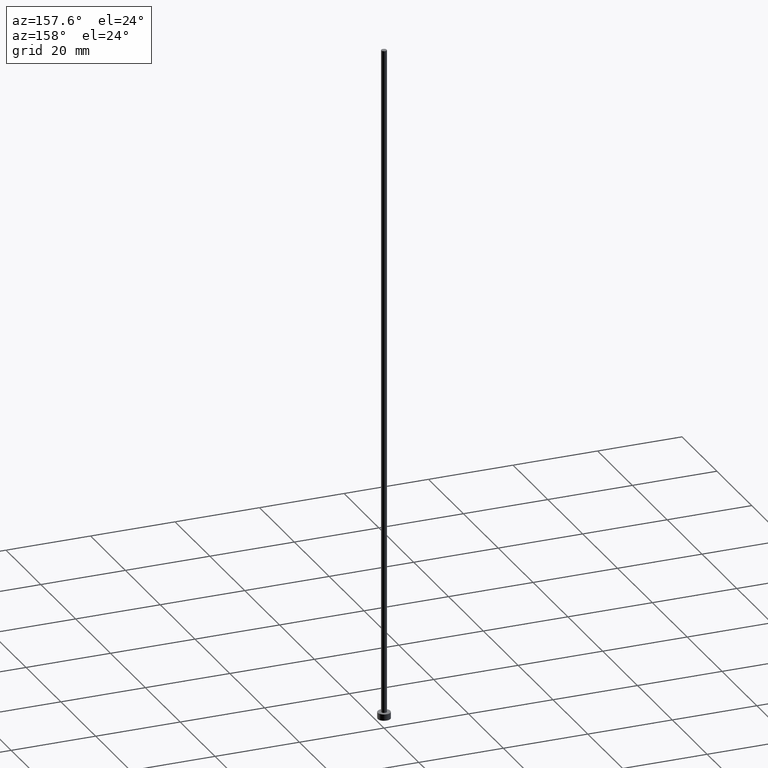
[diagram: clean part render]
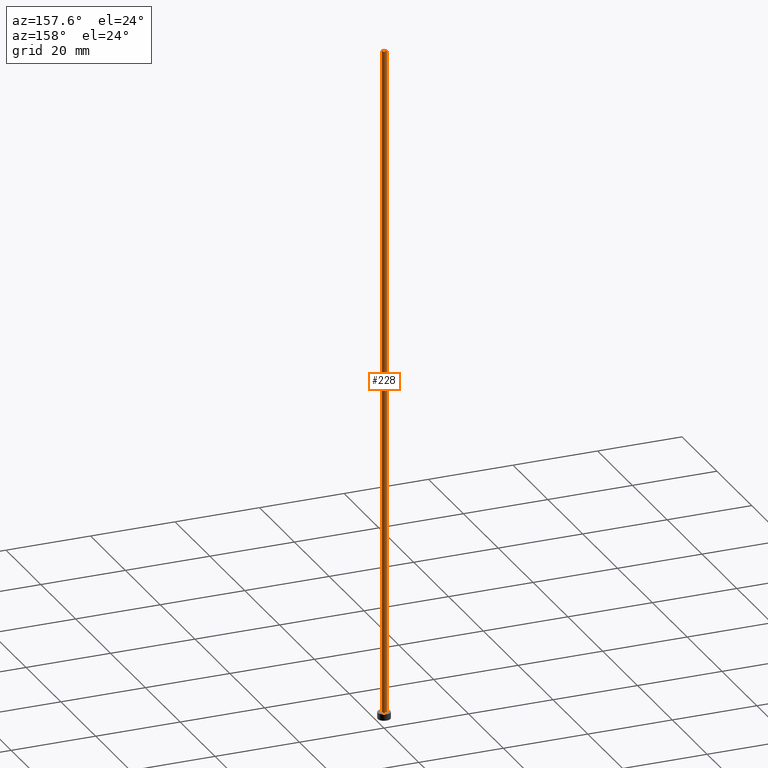
[diagram: same view with one face highlighted and labeled with its STEP entity id]
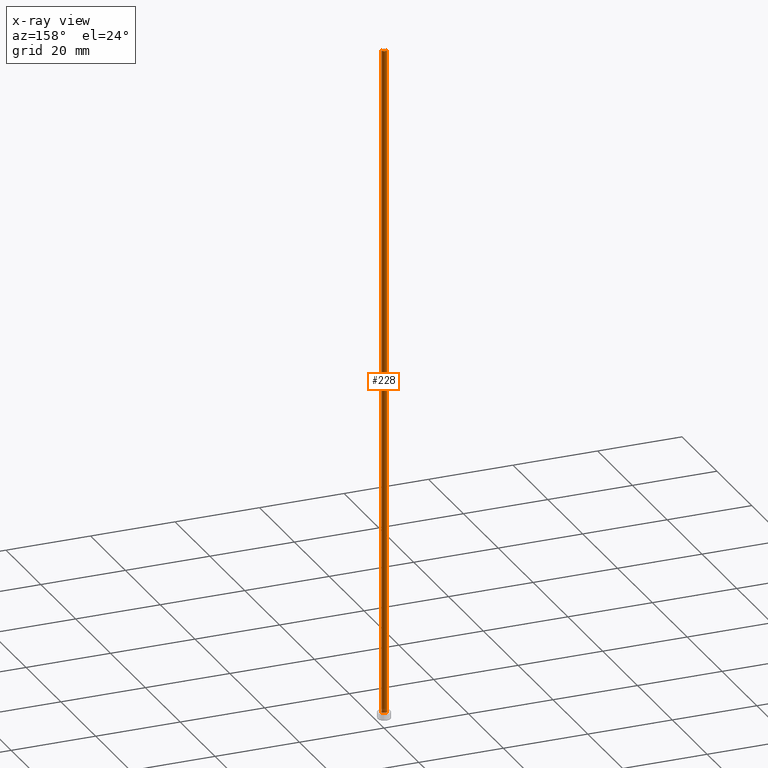
[diagram: x-ray of the same camera — body ghosted, the highlighted face saturated]
A machine part, auxiliary view. The second image highlights one B-rep face of the part: STEP entity #228.
The next image is the same camera in x-ray: the body ghosted, the highlighted face saturated — about 0% of this face is hidden behind the body in this view.
In plain terms, the highlighted cylindrical surface (edge-blend (fillet) strip) has radius 0.65 mm, axis along (-0, -0, -1).
Its self-contained STEP definition (entity closure, byte-faithful):
#10 = DIRECTION ( 'NONE',  ( 0.000000000000000000, 0.000000000000000000, 1.000000000000000000 ) ) ;
#11 = CIRCLE ( 'NONE', #86, 0.6500000000000000222 ) ;
#15 = VECTOR ( 'NONE', #235, 1000.000000000000000 ) ;
#16 = CARTESIAN_POINT ( 'NONE',  ( 0.000000000000000000, 0.000000000000000000, 1.500000000000000000 ) ) ;
#17 = EDGE_CURVE ( 'NONE', #93, #122, #194, .T. ) ;
#18 = DIRECTION ( 'NONE',  ( 1.000000000000000000, 0.000000000000000000, 0.000000000000000000 ) ) ;
#20 = DIRECTION ( 'NONE',  ( -0.000000000000000000, -0.000000000000000000, -1.000000000000000000 ) ) ;
#21 = CARTESIAN_POINT ( 'NONE',  ( 0.000000000000000000, 0.000000000000000000, 160.0000000000000000 ) ) ;
#45 = DIRECTION ( 'NONE',  ( 1.000000000000000000, 0.000000000000000000, 0.000000000000000000 ) ) ;
#48 = VERTEX_POINT ( 'NONE', #208 ) ;
#77 = ORIENTED_EDGE ( 'NONE', *, *, #17, .F. ) ;
#86 = AXIS2_PLACEMENT_3D ( 'NONE', #16, #192, #18 ) ;
#90 = CARTESIAN_POINT ( 'NONE',  ( -0.6500000000000000222, 0.000000000000000000, 160.0000000000000000 ) ) ;
#93 = VERTEX_POINT ( 'NONE', #109 ) ;
#102 = ORIENTED_EDGE ( 'NONE', *, *, #171, .F. ) ;
#104 = EDGE_CURVE ( 'NONE', #93, #48, #254, .T. ) ;
#109 = CARTESIAN_POINT ( 'NONE',  ( 0.6500000000000000222, 7.960204194457795477E-17, 160.0000000000000000 ) ) ;
#112 = LINE ( 'NONE', #138, #239 ) ;
#113 = CARTESIAN_POINT ( 'NONE',  ( -0.6500000000000000222, 0.000000000000000000, 1.500000000000000000 ) ) ;
#114 = DIRECTION ( 'NONE',  ( -0.000000000000000000, -0.000000000000000000, -1.000000000000000000 ) ) ;
#116 = FACE_OUTER_BOUND ( 'NONE', #202, .T. ) ;
#120 = DIRECTION ( 'NONE',  ( -1.000000000000000000, 0.000000000000000000, 0.000000000000000000 ) ) ;
#122 = VERTEX_POINT ( 'NONE', #90 ) ;
#125 = CARTESIAN_POINT ( 'NONE',  ( 0.000000000000000000, 0.000000000000000000, 160.0000000000000000 ) ) ;
#138 = CARTESIAN_POINT ( 'NONE',  ( -0.6500000000000000222, 0.000000000000000000, 160.0000000000000000 ) ) ;
#141 = VERTEX_POINT ( 'NONE', #113 ) ;
#154 = CARTESIAN_POINT ( 'NONE',  ( 0.6500000000000000222, 7.960204194457795477E-17, 160.0000000000000000 ) ) ;
#171 = EDGE_CURVE ( 'NONE', #122, #141, #112, .T. ) ;
#175 = ORIENTED_EDGE ( 'NONE', *, *, #177, .T. ) ;
#177 = EDGE_CURVE ( 'NONE', #48, #141, #11, .T. ) ;
#192 = DIRECTION ( 'NONE',  ( 0.000000000000000000, 0.000000000000000000, 1.000000000000000000 ) ) ;
#193 = CYLINDRICAL_SURFACE ( 'NONE', #198, 0.6500000000000000222 ) ;
#194 = CIRCLE ( 'NONE', #220, 0.6500000000000000222 ) ;
#195 = ORIENTED_EDGE ( 'NONE', *, *, #104, .T. ) ;
#198 = AXIS2_PLACEMENT_3D ( 'NONE', #21, #20, #120 ) ;
#202 = EDGE_LOOP ( 'NONE', ( #77, #195, #175, #102 ) ) ;
#208 = CARTESIAN_POINT ( 'NONE',  ( 0.6500000000000000222, 7.960204194457795477E-17, 1.500000000000000000 ) ) ;
#220 = AXIS2_PLACEMENT_3D ( 'NONE', #125, #10, #45 ) ;
#228 = ADVANCED_FACE ( 'NONE', ( #116 ), #193, .T. ) ;
#235 = DIRECTION ( 'NONE',  ( -0.000000000000000000, -0.000000000000000000, -1.000000000000000000 ) ) ;
#239 = VECTOR ( 'NONE', #114, 1000.000000000000000 ) ;
#254 = LINE ( 'NONE', #154, #15 ) ;